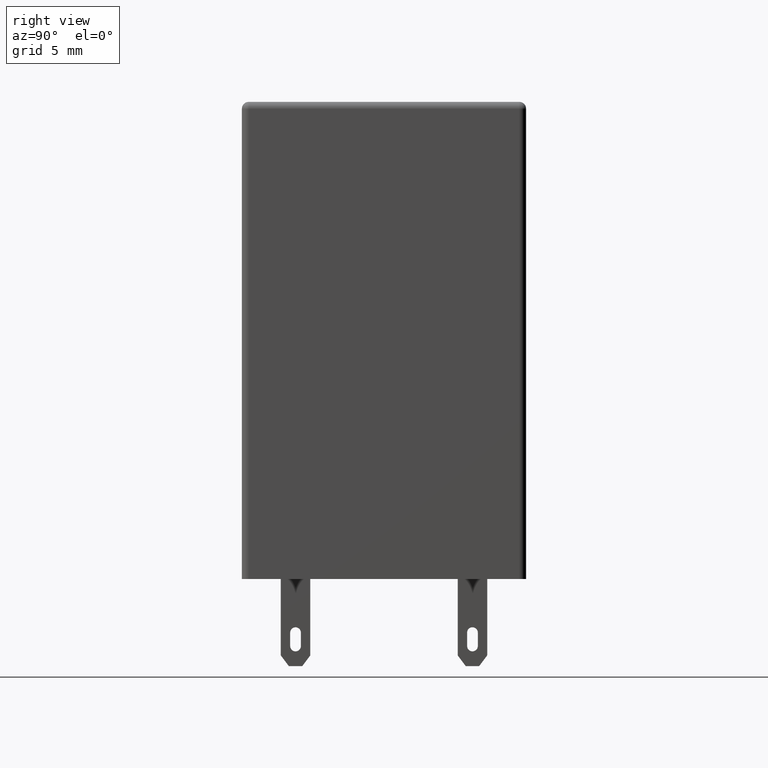
[diagram: clean part render]
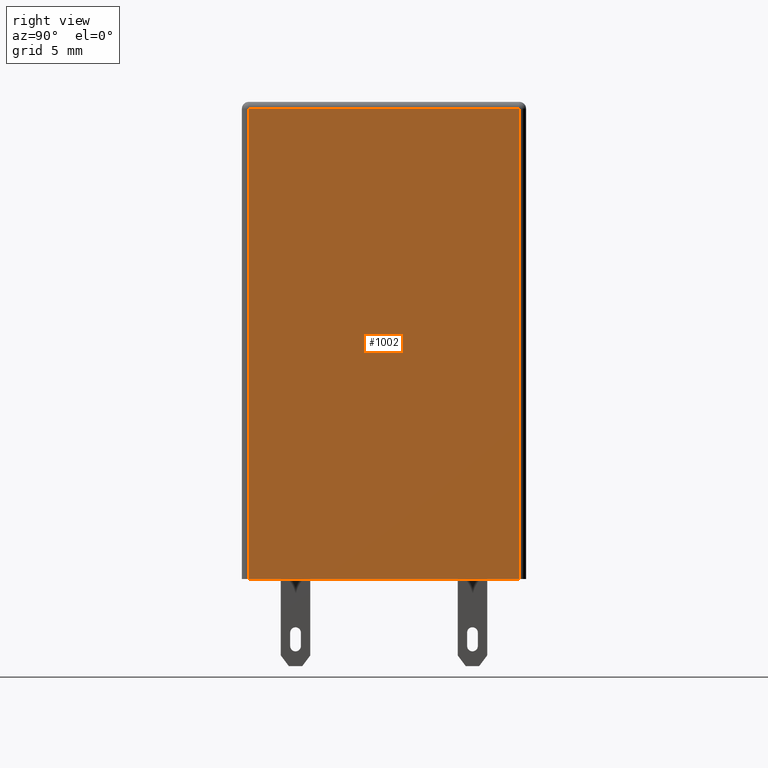
[diagram: same view with one face highlighted and labeled with its STEP entity id]
A machine part, right view. The second image highlights one B-rep face of the part: STEP entity #1002.
In plain terms, the highlighted planar face has unit normal (-1, -0, 0).
Its self-contained STEP definition (entity closure, byte-faithful):
#324 = ORIENTED_EDGE ( 'NONE', *, *, #325, .T. ) ;
#325 = EDGE_CURVE ( 'NONE', #1427, #333, #2140, .T. ) ;
#328 = ORIENTED_EDGE ( 'NONE', *, *, #1433, .T. ) ;
#330 = ORIENTED_EDGE ( 'NONE', *, *, #331, .T. ) ;
#331 = EDGE_CURVE ( 'NONE', #332, #1434, #2136, .T. ) ;
#332 = VERTEX_POINT ( 'NONE', #2132 ) ;
#333 = VERTEX_POINT ( 'NONE', #2131 ) ;
#1002 = ADVANCED_FACE ( 'NONE', ( #3726 ), #3770, .F. ) ;
#1003 = EDGE_LOOP ( 'NONE', ( #1004, #330, #328, #324 ) ) ;
#1004 = ORIENTED_EDGE ( 'NONE', *, *, #1005, .T. ) ;
#1005 = EDGE_CURVE ( 'NONE', #333, #332, #3764, .T. ) ;
#1427 = VERTEX_POINT ( 'NONE', #4675 ) ;
#1433 = EDGE_CURVE ( 'NONE', #1434, #1427, #4723, .T. ) ;
#1434 = VERTEX_POINT ( 'NONE', #4719 ) ;
#2131 = CARTESIAN_POINT ( 'NONE',  ( 13.74999999999999800, 10.09999999999999800, 35.10000000000000100 ) ) ;
#2132 = CARTESIAN_POINT ( 'NONE',  ( 13.75000000000000200, -10.10000000000000100, 35.10000000000000100 ) ) ;
#2133 = DIRECTION ( 'NONE',  ( 0.0000000000000000000, 0.0000000000000000000, -1.000000000000000000 ) ) ;
#2134 = VECTOR ( 'NONE', #2133, 1000.000000000000000 ) ;
#2135 = CARTESIAN_POINT ( 'NONE',  ( 13.75000000000000200, -10.10000000000000100, 35.60000000000000100 ) ) ;
#2136 = LINE ( 'NONE', #2135, #2134 ) ;
#2137 = DIRECTION ( 'NONE',  ( 0.0000000000000000000, 0.0000000000000000000, 1.000000000000000000 ) ) ;
#2138 = VECTOR ( 'NONE', #2137, 1000.000000000000000 ) ;
#2139 = CARTESIAN_POINT ( 'NONE',  ( 13.74999999999999800, 10.09999999999999800, 35.60000000000000100 ) ) ;
#2140 = LINE ( 'NONE', #2139, #2138 ) ;
#3726 = FACE_OUTER_BOUND ( 'NONE', #1003, .T. ) ;
#3761 = DIRECTION ( 'NONE',  ( 1.636531581110195700E-016, -1.000000000000000000, 0.0000000000000000000 ) ) ;
#3762 = VECTOR ( 'NONE', #3761, 1000.000000000000000 ) ;
#3763 = CARTESIAN_POINT ( 'NONE',  ( 13.75000000000000200, -10.60000000000000100, 35.10000000000000100 ) ) ;
#3764 = LINE ( 'NONE', #3763, #3762 ) ;
#3766 = DIRECTION ( 'NONE',  ( 1.636531581110195700E-016, -1.000000000000000000, 0.0000000000000000000 ) ) ;
#3767 = DIRECTION ( 'NONE',  ( -1.000000000000000000, -1.636531581110195700E-016, 0.0000000000000000000 ) ) ;
#3768 = CARTESIAN_POINT ( 'NONE',  ( 13.74999999999999800, 10.59999999999999800, 35.60000000000000100 ) ) ;
#3769 = AXIS2_PLACEMENT_3D ( 'NONE', #3768, #3767, #3766 ) ;
#3770 = PLANE ( 'NONE',  #3769 ) ;
#4675 = CARTESIAN_POINT ( 'NONE',  ( 13.74999999999999800, 10.09999999999999800, 0.0000000000000000000 ) ) ;
#4719 = CARTESIAN_POINT ( 'NONE',  ( 13.75000000000000200, -10.10000000000000100, 0.0000000000000000000 ) ) ;
#4720 = DIRECTION ( 'NONE',  ( -1.636531581110195400E-016, 1.000000000000000000, 0.0000000000000000000 ) ) ;
#4721 = VECTOR ( 'NONE', #4720, 1000.000000000000000 ) ;
#4722 = CARTESIAN_POINT ( 'NONE',  ( 13.74999999999999800, 10.59999999999999800, 0.0000000000000000000 ) ) ;
#4723 = LINE ( 'NONE', #4722, #4721 ) ;